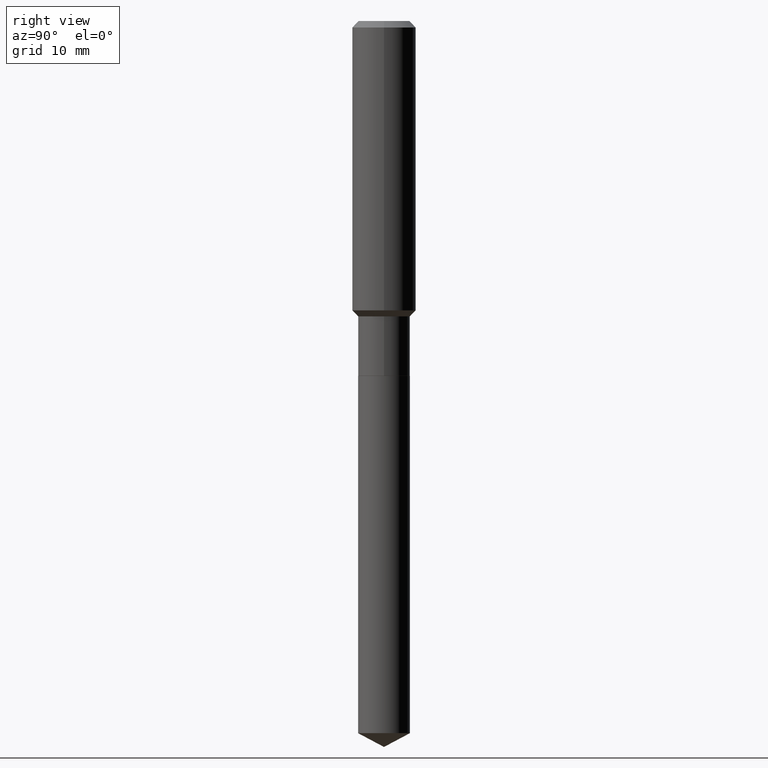
[diagram: clean part render]
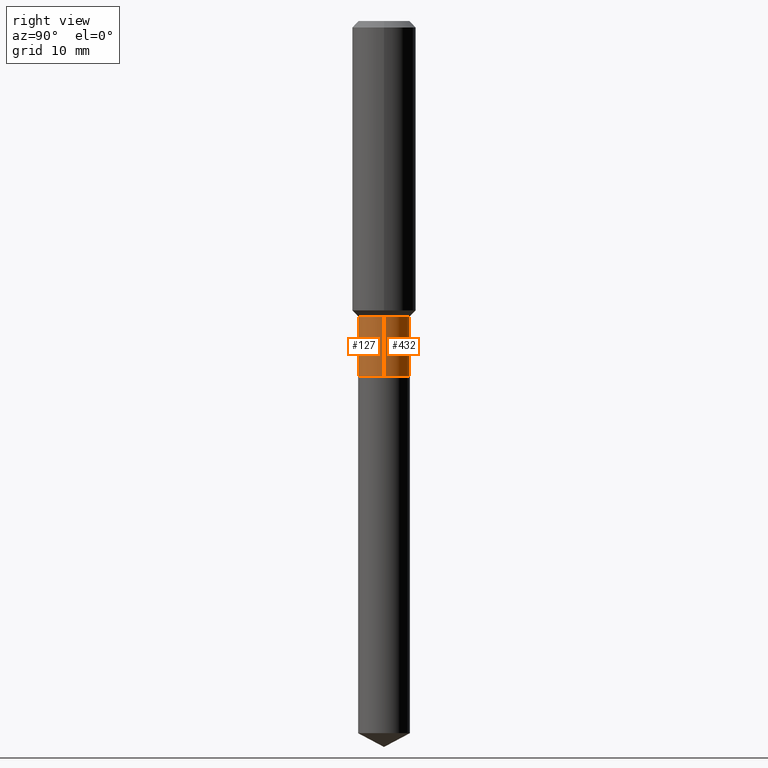
[diagram: same view with one multi-face feature highlighted, each face labeled with its STEP entity id]
A machine part, right view. The highlighted faces form ONE feature: a constant-radius fillet chain: 2 tangent blend faces with common blend radius 3.2499 mm. The faces share edges in the B-rep.
Their STEP definitions:
[1] entity #432 (Cylinder):
#27 = LINE ( 'NONE', #98, #273 ) ;
#39 = FACE_OUTER_BOUND ( 'NONE', #120, .T. ) ;
#55 = CARTESIAN_POINT ( 'NONE',  ( 0.1279499999999999804, -5.983002422241610534E-15, -1.457700000000000218 ) ) ;
#68 = CIRCLE ( 'NONE', #326, 0.1279499999999999804 ) ;
#72 = VERTEX_POINT ( 'NONE', #434 ) ;
#76 = EDGE_CURVE ( 'NONE', #256, #337, #429, .T. ) ;
#98 = CARTESIAN_POINT ( 'NONE',  ( 0.1279500000000000082, -8.934700746099578698E-16, 6.239068184630899488E-30 ) ) ;
#111 = CARTESIAN_POINT ( 'NONE',  ( 4.283238614033268009E-29, -6.115329564983771548E-15, -1.751500000000000501 ) ) ;
#114 = DIRECTION ( 'NONE',  ( 1.000000000000000000, -6.982962677686266711E-15, 4.876176775795935232E-29 ) ) ;
#120 = EDGE_LOOP ( 'NONE', ( #418, #189, #446, #173 ) ) ;
#132 = DIRECTION ( 'NONE',  ( 1.000000000000000000, -6.982962677686263555E-15, 0.000000000000000000 ) ) ;
#134 = VERTEX_POINT ( 'NONE', #55 ) ;
#173 = ORIENTED_EDGE ( 'NONE', *, *, #296, .F. ) ;
#181 = CARTESIAN_POINT ( 'NONE',  ( -0.1279499999999999804, -4.693291525902664255E-15, -1.457700000000000218 ) ) ;
#189 = ORIENTED_EDGE ( 'NONE', *, *, #76, .T. ) ;
#211 = DIRECTION ( 'NONE',  ( -2.445468806185136597E-29, 3.491481338843145583E-15, 1.000000000000000000 ) ) ;
#221 = DIRECTION ( 'NONE',  ( -2.445468806185136597E-29, 3.491481338843145583E-15, 1.000000000000000000 ) ) ;
#235 = CARTESIAN_POINT ( 'NONE',  ( -0.1279500000000000082, 9.091394304050482459E-16, -6.293777447981151559E-30 ) ) ;
#242 = CARTESIAN_POINT ( 'NONE',  ( -0.1279500000000000359, -4.693291525902664255E-15, -1.751500000000000501 ) ) ;
#245 = EDGE_CURVE ( 'NONE', #134, #337, #68, .T. ) ;
#256 = VERTEX_POINT ( 'NONE', #242 ) ;
#273 = VECTOR ( 'NONE', #320, 39.37007874015748143 ) ;
#280 = CIRCLE ( 'NONE', #356, 0.1279500000000000082 ) ;
#284 = CARTESIAN_POINT ( 'NONE',  ( 3.564759878776074518E-29, -5.089532347631653453E-15, -1.457700000000000218 ) ) ;
#296 = EDGE_CURVE ( 'NONE', #72, #134, #27, .T. ) ;
#320 = DIRECTION ( 'NONE',  ( -2.445468806185136877E-29, 3.491481338843145188E-15, 1.000000000000000000 ) ) ;
#326 = AXIS2_PLACEMENT_3D ( 'NONE', #284, #211, #132 ) ;
#337 = VERTEX_POINT ( 'NONE', #181 ) ;
#349 = DIRECTION ( 'NONE',  ( -2.445468806185136877E-29, 3.491481338843145188E-15, 1.000000000000000000 ) ) ;
#356 = AXIS2_PLACEMENT_3D ( 'NONE', #111, #221, #451 ) ;
#365 = AXIS2_PLACEMENT_3D ( 'NONE', #459, #457, #114 ) ;
#411 = CYLINDRICAL_SURFACE ( 'NONE', #365, 0.1279500000000000082 ) ;
#418 = ORIENTED_EDGE ( 'NONE', *, *, #445, .T. ) ;
#421 = VECTOR ( 'NONE', #349, 39.37007874015748143 ) ;
#429 = LINE ( 'NONE', #235, #421 ) ;
#432 = ADVANCED_FACE ( 'NONE', ( #39 ), #411, .T. ) ;
#434 = CARTESIAN_POINT ( 'NONE',  ( 0.1279500000000000082, -7.008799639593729418E-15, -1.751500000000000501 ) ) ;
#446 = ORIENTED_EDGE ( 'NONE', *, *, #245, .F. ) ;
#445 = EDGE_CURVE ( 'NONE', #72, #256, #280, .T. ) ;
#451 = DIRECTION ( 'NONE',  ( 1.000000000000000000, -6.982962677686269866E-15, 0.000000000000000000 ) ) ;
#457 = DIRECTION ( 'NONE',  ( -2.445468806185136597E-29, 3.491481338843145583E-15, 1.000000000000000000 ) ) ;
#459 = CARTESIAN_POINT ( 'NONE',  ( 0.000000000000000000, 0.000000000000000000, 0.000000000000000000 ) ) ;
[2] entity #127 (Cylinder):
#13 = FACE_OUTER_BOUND ( 'NONE', #100, .T. ) ;
#18 = DIRECTION ( 'NONE',  ( 1.000000000000000000, -6.982962677686269866E-15, 0.000000000000000000 ) ) ;
#27 = LINE ( 'NONE', #98, #273 ) ;
#55 = CARTESIAN_POINT ( 'NONE',  ( 0.1279499999999999804, -5.983002422241610534E-15, -1.457700000000000218 ) ) ;
#56 = EDGE_CURVE ( 'NONE', #337, #134, #277, .T. ) ;
#72 = VERTEX_POINT ( 'NONE', #434 ) ;
#76 = EDGE_CURVE ( 'NONE', #256, #337, #429, .T. ) ;
#81 = DIRECTION ( 'NONE',  ( -2.445468806185136597E-29, 3.491481338843145583E-15, 1.000000000000000000 ) ) ;
#85 = CARTESIAN_POINT ( 'NONE',  ( 4.283238614033268009E-29, -6.115329564983771548E-15, -1.751500000000000501 ) ) ;
#88 = CARTESIAN_POINT ( 'NONE',  ( 3.564759878776074518E-29, -5.089532347631653453E-15, -1.457700000000000218 ) ) ;
#91 = EDGE_CURVE ( 'NONE', #256, #72, #237, .T. ) ;
#98 = CARTESIAN_POINT ( 'NONE',  ( 0.1279500000000000082, -8.934700746099578698E-16, 6.239068184630899488E-30 ) ) ;
#100 = EDGE_LOOP ( 'NONE', ( #333, #246, #131, #458 ) ) ;
#127 = ADVANCED_FACE ( 'NONE', ( #13 ), #396, .T. ) ;
#131 = ORIENTED_EDGE ( 'NONE', *, *, #296, .T. ) ;
#134 = VERTEX_POINT ( 'NONE', #55 ) ;
#137 = AXIS2_PLACEMENT_3D ( 'NONE', #88, #81, #351 ) ;
#164 = CARTESIAN_POINT ( 'NONE',  ( 0.000000000000000000, 0.000000000000000000, 0.000000000000000000 ) ) ;
#177 = AXIS2_PLACEMENT_3D ( 'NONE', #164, #274, #236 ) ;
#181 = CARTESIAN_POINT ( 'NONE',  ( -0.1279499999999999804, -4.693291525902664255E-15, -1.457700000000000218 ) ) ;
#235 = CARTESIAN_POINT ( 'NONE',  ( -0.1279500000000000082, 9.091394304050482459E-16, -6.293777447981151559E-30 ) ) ;
#236 = DIRECTION ( 'NONE',  ( 1.000000000000000000, -6.982962677686266711E-15, 4.876176775795935232E-29 ) ) ;
#237 = CIRCLE ( 'NONE', #323, 0.1279500000000000082 ) ;
#242 = CARTESIAN_POINT ( 'NONE',  ( -0.1279500000000000359, -4.693291525902664255E-15, -1.751500000000000501 ) ) ;
#246 = ORIENTED_EDGE ( 'NONE', *, *, #91, .T. ) ;
#256 = VERTEX_POINT ( 'NONE', #242 ) ;
#273 = VECTOR ( 'NONE', #320, 39.37007874015748143 ) ;
#274 = DIRECTION ( 'NONE',  ( -2.445468806185136597E-29, 3.491481338843145583E-15, 1.000000000000000000 ) ) ;
#277 = CIRCLE ( 'NONE', #137, 0.1279499999999999804 ) ;
#296 = EDGE_CURVE ( 'NONE', #72, #134, #27, .T. ) ;
#320 = DIRECTION ( 'NONE',  ( -2.445468806185136877E-29, 3.491481338843145188E-15, 1.000000000000000000 ) ) ;
#323 = AXIS2_PLACEMENT_3D ( 'NONE', #85, #346, #18 ) ;
#333 = ORIENTED_EDGE ( 'NONE', *, *, #76, .F. ) ;
#337 = VERTEX_POINT ( 'NONE', #181 ) ;
#346 = DIRECTION ( 'NONE',  ( -2.445468806185136597E-29, 3.491481338843145583E-15, 1.000000000000000000 ) ) ;
#349 = DIRECTION ( 'NONE',  ( -2.445468806185136877E-29, 3.491481338843145188E-15, 1.000000000000000000 ) ) ;
#351 = DIRECTION ( 'NONE',  ( 1.000000000000000000, -6.982962677686263555E-15, 0.000000000000000000 ) ) ;
#396 = CYLINDRICAL_SURFACE ( 'NONE', #177, 0.1279500000000000082 ) ;
#421 = VECTOR ( 'NONE', #349, 39.37007874015748143 ) ;
#429 = LINE ( 'NONE', #235, #421 ) ;
#434 = CARTESIAN_POINT ( 'NONE',  ( 0.1279500000000000082, -7.008799639593729418E-15, -1.751500000000000501 ) ) ;
#458 = ORIENTED_EDGE ( 'NONE', *, *, #56, .F. ) ;